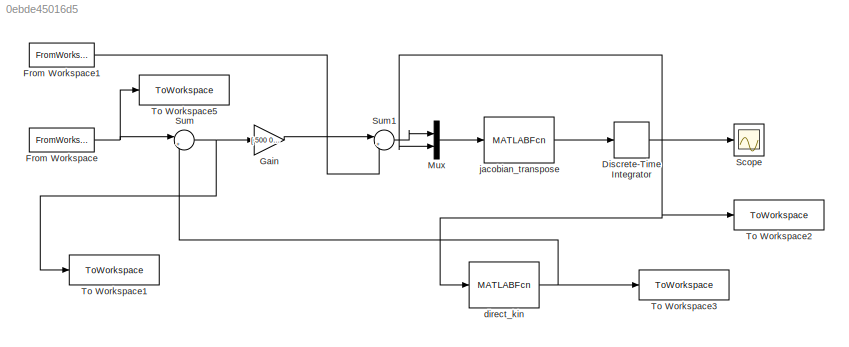
MODEL slx_0ebde45016d5
KIND model
CONFIG AbsTol = auto
CONFIG EnableMultiTasking = off
CONFIG FixedStep = 0.001
CONFIG MaxStep = auto
CONFIG MinStep = auto
CONFIG RelTol = 1e-3
CONFIG SampleTimeConstraint = Unconstrained
CONFIG SolverName = ode1
CONFIG StartTime = 0.0
CONFIG StopTime = 4
BLOCK [DiscreteIntegrator] Discrete-Time Integrator
  ICPrevOutput = DiscIntNeverNeededParam
  ICPrevScaledInput = DiscIntNeverNeededParam
  InitialCondition = [-0.927;\n-1.287;\n0.70; 2.2143]
  InitialConditionSetting = Auto
  SampleTime = Tc
BLOCK [FromWorkspace] From Workspace
  SampleTime = Tc
  VariableName = [t,pd,theta_d]
BLOCK [FromWorkspace] From Workspace1
  SampleTime = Tc
  VariableName = [t,pd_dot,theta_d_dot]
BLOCK [Gain] Gain
  Gain = [ 500 0 0 0; 0 500 0 0; 0 0 500 0; 0 0 0 500 ]
  Multiplication = Matrix(K*u)
BLOCK [Mux] Mux
  DisplayOption = bar
  Inputs = 2
BLOCK [Scope] Scope
  Floating = off
  NumInputPorts = 1
  ScopeSpecificationString = Simulink.scopes.TimeScopeBlockCfg('CurrentConfiguration', extmgr.ConfigurationSet(extmgr.Configuration('Core','General UI',true),extmgr.Configuration('Core','Source UI',true),extmgr.Configuration('Sources','WiredSimulink',true),extmgr.Configuration('Visuals','Time Domain',true,'SerializedDisplays',{struct('MinYLimReal','-2.44319','MaxYLimReal','6.61031','YLabelReal','','MinYLimMag','0.00000','MaxY...<+1433ch>
BLOCK [Sum] Sum
  Inputs = |+-
BLOCK [Sum] Sum1
  Inputs = |++
BLOCK [ToWorkspace] To Workspace1
  FixptAsFi = on
  MaxDataPoints = inf
  SampleTime = -1
  VariableName = e_out
BLOCK [ToWorkspace] To Workspace2
  FixptAsFi = on
  MaxDataPoints = inf
  SampleTime = -1
  VariableName = result_joint
BLOCK [ToWorkspace] To Workspace3
  FixptAsFi = on
  MaxDataPoints = inf
  SampleTime = -1
  VariableName = result_coordinate
BLOCK [ToWorkspace] To Workspace5
  FixptAsFi = on
  MaxDataPoints = inf
  SampleTime = -1
  SaveFormat = Timeseries
  VariableName = desired_po
BLOCK [MATLABFcn] direct_kin
  Description = call direct_kin.m
  MATLABFcn = direct_kin
  OutputDimensions = 4
  OutputSignalType = real
BLOCK [MATLABFcn] jacobian_transpose
  MATLABFcn = jacobian_transpose
  OutputDimensions = 4
  OutputSignalType = real
NET Discrete-Time Integrator:1 -> Mux:2, Scope:1, To Workspace2:1, direct_kin:1
LINE From Workspace1:1 -> Sum1:2
NET From Workspace:1 -> Sum:1, To Workspace5:1
LINE Gain:1 -> Sum1:1
LINE Mux:1 -> jacobian_transpose:1
LINE Sum1:1 -> Mux:1
NET Sum:1 -> Gain:1, To Workspace1:1
NET direct_kin:1 -> Sum:2, To Workspace3:1
LINE jacobian_transpose:1 -> Discrete-Time Integrator:1
note: NET lines group one-source signal fan-out (src -> all destinations, sorted); 1:1 wires keep LINE
